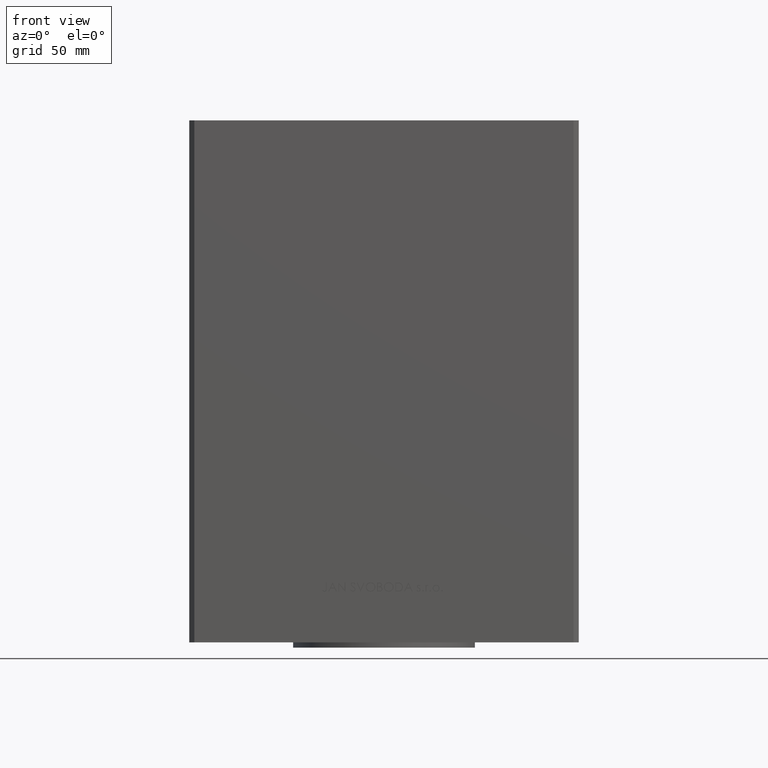
[diagram: clean part render]
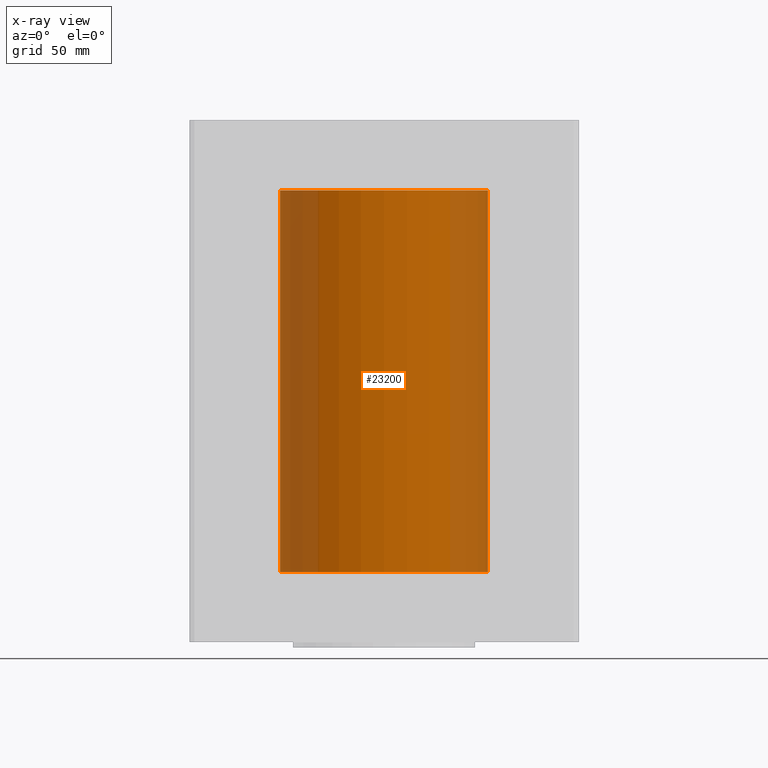
[diagram: x-ray — body ghosted, one internal face saturated and labeled with its STEP entity id]
A machine part, front view, then the same camera in x-ray: the body is ghosted and one INTERNAL B-rep face — a face not visible from any outside direction — is saturated and labeled: STEP entity #23200.
In plain terms, the highlighted cylindrical surface (partial cylindrical patch) has radius 40 mm, axis along (-0, -0, -1).
Its self-contained STEP definition (entity closure, byte-faithful):
#1110 = CARTESIAN_POINT ( 'NONE',  ( 40.00000000000000000, 4.898587196589413026E-15, 147.0000000000000000 ) ) ;
#2815 = CARTESIAN_POINT ( 'NONE',  ( 40.00000000000000000, 4.898587196589413026E-15, 147.0000000000000000 ) ) ;
#4437 = VERTEX_POINT ( 'NONE', #46432 ) ;
#4488 = DIRECTION ( 'NONE',  ( -0.000000000000000000, 0.000000000000000000, 1.000000000000000000 ) ) ;
#4971 = VERTEX_POINT ( 'NONE', #2815 ) ;
#7775 = EDGE_LOOP ( 'NONE', ( #41285, #25498, #42823, #46351 ) ) ;
#9451 = CARTESIAN_POINT ( 'NONE',  ( 0.000000000000000000, 0.000000000000000000, 0.000000000000000000 ) ) ;
#9764 = DIRECTION ( 'NONE',  ( -0.000000000000000000, -0.000000000000000000, -1.000000000000000000 ) ) ;
#10311 = VECTOR ( 'NONE', #35240, 1000.000000000000000 ) ;
#12855 = DIRECTION ( 'NONE',  ( 1.000000000000000000, 0.000000000000000000, 0.000000000000000000 ) ) ;
#17160 = VERTEX_POINT ( 'NONE', #20063 ) ;
#19444 = AXIS2_PLACEMENT_3D ( 'NONE', #23989, #20286, #43289 ) ;
#20063 = CARTESIAN_POINT ( 'NONE',  ( 40.00000000000000000, 4.898587196589413026E-15, 0.000000000000000000 ) ) ;
#20286 = DIRECTION ( 'NONE',  ( -0.000000000000000000, -0.000000000000000000, -1.000000000000000000 ) ) ;
#20807 = DIRECTION ( 'NONE',  ( -0.000000000000000000, 0.000000000000000000, 1.000000000000000000 ) ) ;
#20953 = AXIS2_PLACEMENT_3D ( 'NONE', #9451, #20807, #35926 ) ;
#21228 = EDGE_CURVE ( 'NONE', #4437, #17160, #40707, .T. ) ;
#23200 = ADVANCED_FACE ( 'NONE', ( #31665 ), #36123, .F. ) ;
#23989 = CARTESIAN_POINT ( 'NONE',  ( 0.000000000000000000, 0.000000000000000000, 147.0000000000000000 ) ) ;
#25498 = ORIENTED_EDGE ( 'NONE', *, *, #43750, .T. ) ;
#26018 = AXIS2_PLACEMENT_3D ( 'NONE', #46038, #4488, #12855 ) ;
#26403 = CIRCLE ( 'NONE', #26018, 40.00000000000000000 ) ;
#31665 = FACE_OUTER_BOUND ( 'NONE', #7775, .T. ) ;
#31702 = VECTOR ( 'NONE', #9764, 1000.000000000000000 ) ;
#32470 = EDGE_CURVE ( 'NONE', #43160, #4971, #26403, .T. ) ;
#32772 = LINE ( 'NONE', #48364, #31702 ) ;
#35240 = DIRECTION ( 'NONE',  ( -0.000000000000000000, -0.000000000000000000, -1.000000000000000000 ) ) ;
#35926 = DIRECTION ( 'NONE',  ( 1.000000000000000000, 0.000000000000000000, 0.000000000000000000 ) ) ;
#36123 = CYLINDRICAL_SURFACE ( 'NONE', #19444, 40.00000000000000000 ) ;
#40707 = CIRCLE ( 'NONE', #20953, 40.00000000000000000 ) ;
#41285 = ORIENTED_EDGE ( 'NONE', *, *, #32470, .T. ) ;
#42823 = ORIENTED_EDGE ( 'NONE', *, *, #21228, .F. ) ;
#43160 = VERTEX_POINT ( 'NONE', #43306 ) ;
#43289 = DIRECTION ( 'NONE',  ( -1.000000000000000000, 0.000000000000000000, 0.000000000000000000 ) ) ;
#43306 = CARTESIAN_POINT ( 'NONE',  ( -40.00000000000000000, 0.000000000000000000, 147.0000000000000000 ) ) ;
#43750 = EDGE_CURVE ( 'NONE', #4971, #17160, #45398, .T. ) ;
#45398 = LINE ( 'NONE', #1110, #10311 ) ;
#46038 = CARTESIAN_POINT ( 'NONE',  ( 0.000000000000000000, 0.000000000000000000, 147.0000000000000000 ) ) ;
#46351 = ORIENTED_EDGE ( 'NONE', *, *, #46491, .F. ) ;
#46432 = CARTESIAN_POINT ( 'NONE',  ( -40.00000000000000000, 0.000000000000000000, 0.000000000000000000 ) ) ;
#46491 = EDGE_CURVE ( 'NONE', #43160, #4437, #32772, .T. ) ;
#48364 = CARTESIAN_POINT ( 'NONE',  ( -40.00000000000000000, 0.000000000000000000, 147.0000000000000000 ) ) ;